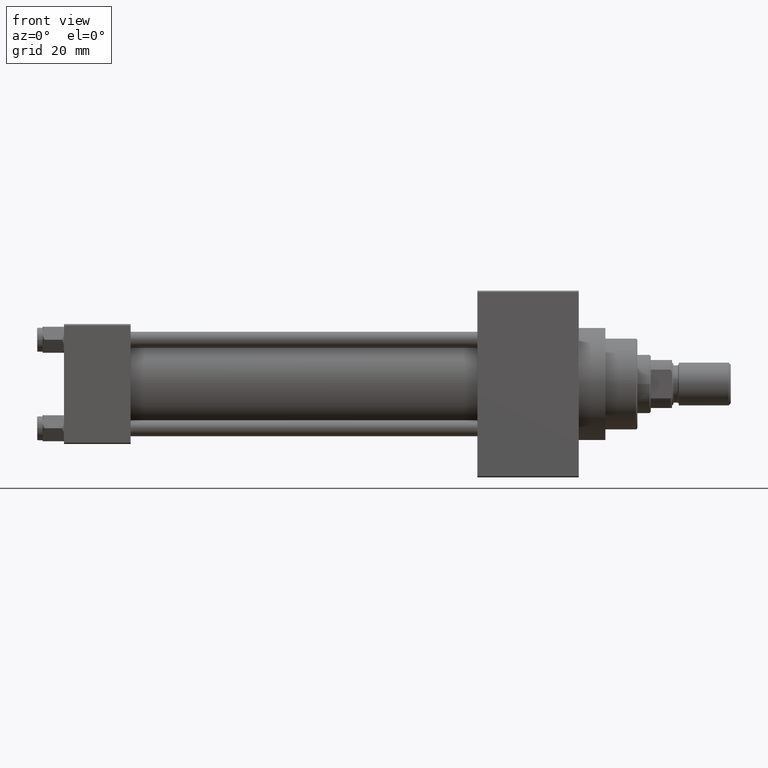
[diagram: clean part render]
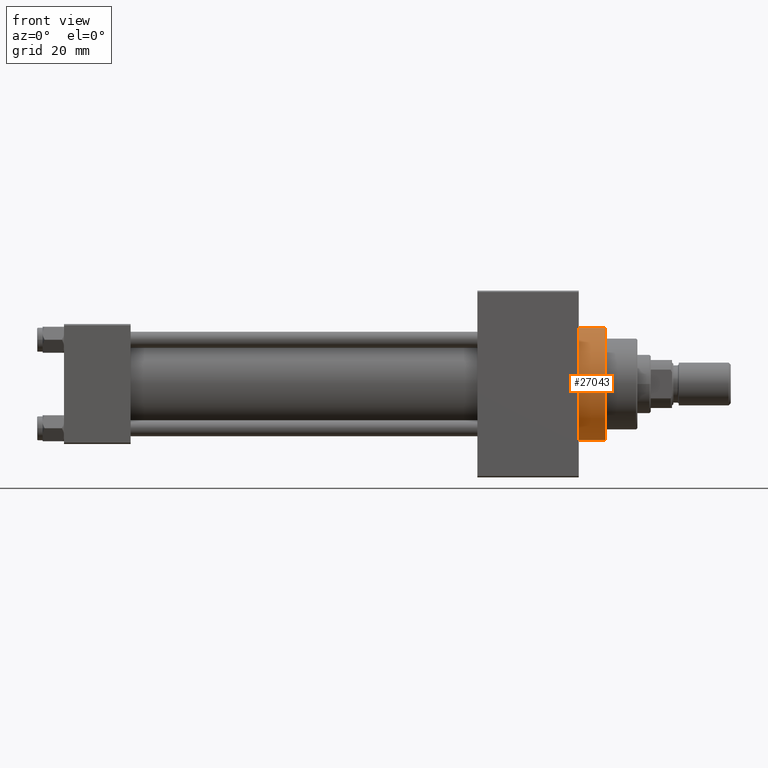
[diagram: same view with one face highlighted and labeled with its STEP entity id]
A machine part, front view. The second image highlights one B-rep face of the part: STEP entity #27043.
In plain terms, the highlighted cylindrical surface (partial cylindrical patch) has radius 21 mm, axis along (-1, -0, -0).
Its self-contained STEP definition (entity closure, byte-faithful):
#593 = DIRECTION ( 'NONE',  ( -1.000000000000000000, -0.000000000000000000, -0.000000000000000000 ) ) ;
#3370 = VERTEX_POINT ( 'NONE', #11514 ) ;
#4980 = DIRECTION ( 'NONE',  ( 1.000000000000000000, 0.000000000000000000, 0.000000000000000000 ) ) ;
#7680 = CYLINDRICAL_SURFACE ( 'NONE', #8292, 21.00000000000000000 ) ;
#7905 = DIRECTION ( 'NONE',  ( -1.000000000000000000, -0.000000000000000000, -0.000000000000000000 ) ) ;
#8214 = CARTESIAN_POINT ( 'NONE',  ( 193.0000000000000000, 0.000000000000000000, 0.000000000000000000 ) ) ;
#8227 = AXIS2_PLACEMENT_3D ( 'NONE', #25824, #32765, #36240 ) ;
#8292 = AXIS2_PLACEMENT_3D ( 'NONE', #11649, #14865, #41162 ) ;
#8895 = ORIENTED_EDGE ( 'NONE', *, *, #32971, .T. ) ;
#11407 = CIRCLE ( 'NONE', #8227, 21.00000000000000000 ) ;
#11420 = EDGE_LOOP ( 'NONE', ( #19823, #21706, #8895, #11760 ) ) ;
#11514 = CARTESIAN_POINT ( 'NONE',  ( 193.0000000000000000, 0.000000000000000000, 21.00000000000000000 ) ) ;
#11649 = CARTESIAN_POINT ( 'NONE',  ( 203.0000000000000000, 0.000000000000000000, 0.000000000000000000 ) ) ;
#11760 = ORIENTED_EDGE ( 'NONE', *, *, #39012, .T. ) ;
#11894 = CARTESIAN_POINT ( 'NONE',  ( 193.0000000000000000, 2.571758278209441661E-15, -21.00000000000000000 ) ) ;
#11926 = CARTESIAN_POINT ( 'NONE',  ( 203.0000000000000000, 2.571758278209441661E-15, -21.00000000000000000 ) ) ;
#14865 = DIRECTION ( 'NONE',  ( -1.000000000000000000, -0.000000000000000000, -0.000000000000000000 ) ) ;
#19788 = CARTESIAN_POINT ( 'NONE',  ( 203.0000000000000000, 0.000000000000000000, 21.00000000000000000 ) ) ;
#19823 = ORIENTED_EDGE ( 'NONE', *, *, #30006, .F. ) ;
#20156 = VECTOR ( 'NONE', #593, 1000.000000000000000 ) ;
#21644 = EDGE_CURVE ( 'NONE', #43316, #40988, #11407, .T. ) ;
#21706 = ORIENTED_EDGE ( 'NONE', *, *, #21644, .F. ) ;
#23882 = CARTESIAN_POINT ( 'NONE',  ( 203.0000000000000000, 2.571758278209441661E-15, -21.00000000000000000 ) ) ;
#24130 = LINE ( 'NONE', #23882, #20156 ) ;
#25824 = CARTESIAN_POINT ( 'NONE',  ( 203.0000000000000000, 0.000000000000000000, 0.000000000000000000 ) ) ;
#26751 = LINE ( 'NONE', #19788, #35301 ) ;
#27043 = ADVANCED_FACE ( 'NONE', ( #45130 ), #7680, .T. ) ;
#27568 = AXIS2_PLACEMENT_3D ( 'NONE', #8214, #4980, #38455 ) ;
#30006 = EDGE_CURVE ( 'NONE', #40988, #31640, #24130, .T. ) ;
#31640 = VERTEX_POINT ( 'NONE', #11894 ) ;
#32765 = DIRECTION ( 'NONE',  ( 1.000000000000000000, 0.000000000000000000, 0.000000000000000000 ) ) ;
#32971 = EDGE_CURVE ( 'NONE', #43316, #3370, #26751, .T. ) ;
#35301 = VECTOR ( 'NONE', #7905, 1000.000000000000000 ) ;
#36240 = DIRECTION ( 'NONE',  ( 0.000000000000000000, 0.000000000000000000, -1.000000000000000000 ) ) ;
#38455 = DIRECTION ( 'NONE',  ( 0.000000000000000000, 0.000000000000000000, -1.000000000000000000 ) ) ;
#39012 = EDGE_CURVE ( 'NONE', #3370, #31640, #48938, .T. ) ;
#40988 = VERTEX_POINT ( 'NONE', #11926 ) ;
#41162 = DIRECTION ( 'NONE',  ( 0.000000000000000000, 0.000000000000000000, 1.000000000000000000 ) ) ;
#43316 = VERTEX_POINT ( 'NONE', #47014 ) ;
#45130 = FACE_OUTER_BOUND ( 'NONE', #11420, .T. ) ;
#47014 = CARTESIAN_POINT ( 'NONE',  ( 203.0000000000000000, 0.000000000000000000, 21.00000000000000000 ) ) ;
#48938 = CIRCLE ( 'NONE', #27568, 21.00000000000000000 ) ;